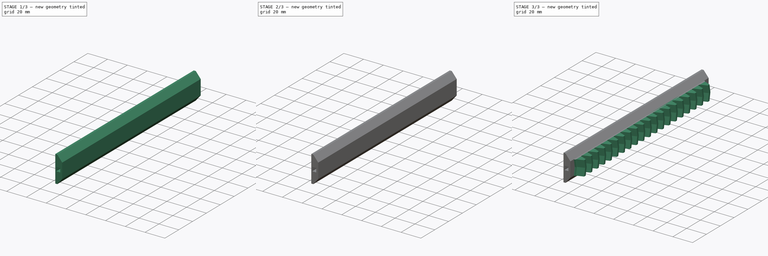
[diagram: build sequence overview — one tinted view per stage of 3, left to right]
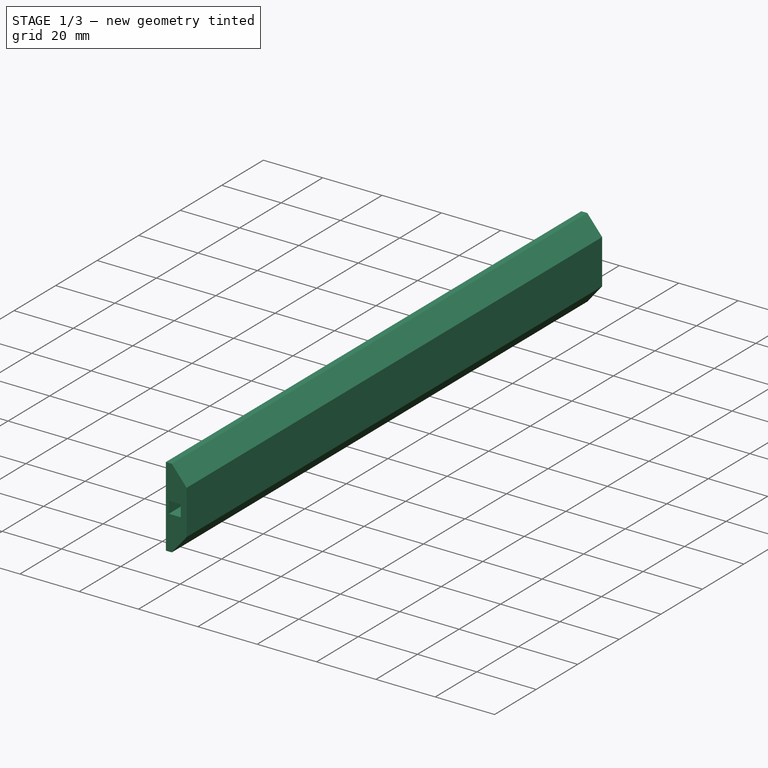
[diagram: stage 1 of 3 — iso view after this stage's code; geometry added in this stage tinted green]
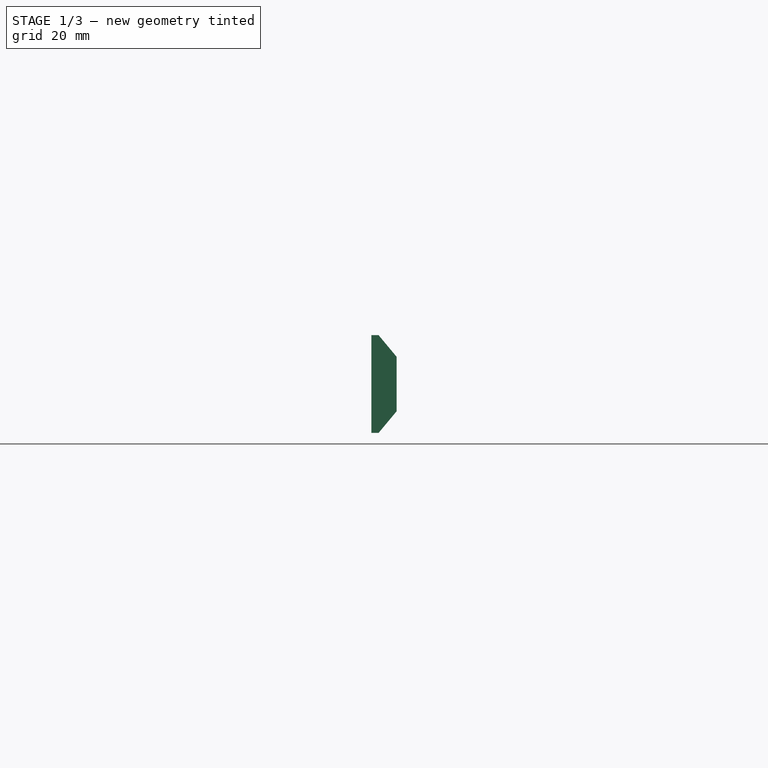
[diagram: stage 1 of 3 — front view after this stage's code; geometry added in this stage tinted green]
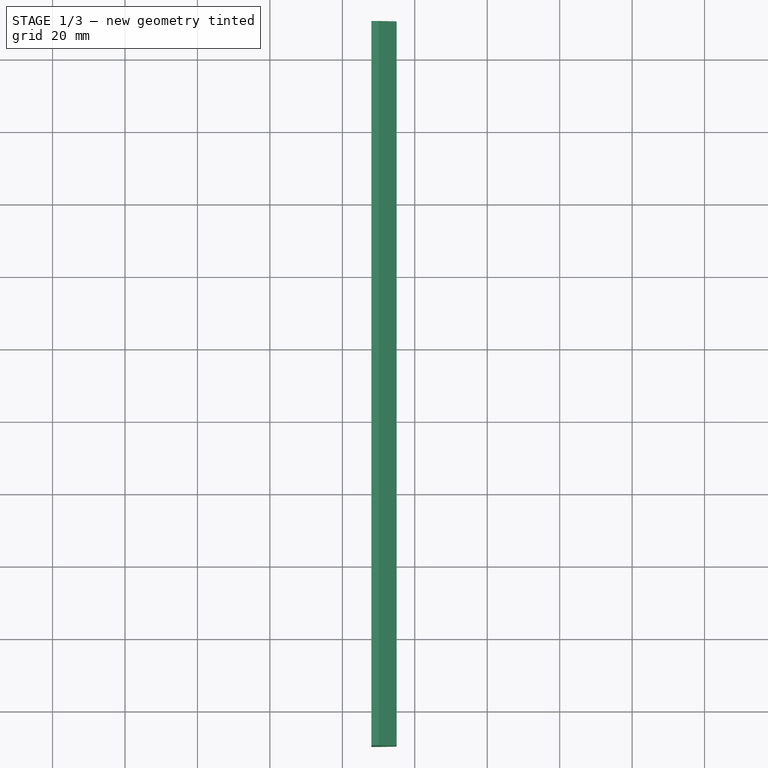
[diagram: stage 1 of 3 — top view after this stage's code; geometry added in this stage tinted green]
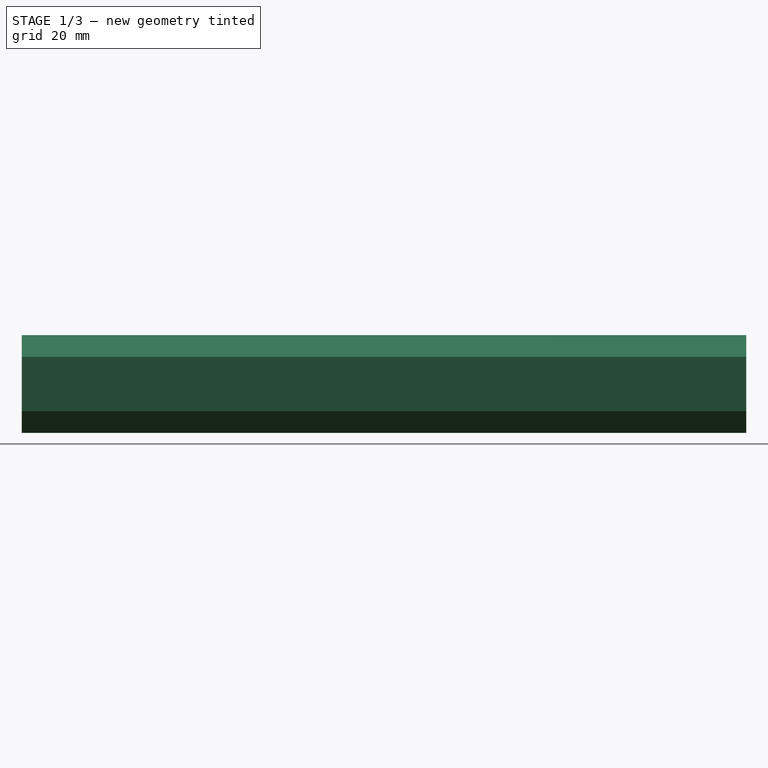
[diagram: stage 1 of 3 — right view after this stage's code; geometry added in this stage tinted green]
FCSTD DOCUMENT  (FreeCAD 1.0R39285 (Git))
Label: rack-01
License: All rights reserved
LicenseURL: http://en.wikipedia.org/wiki/All_rights_reserved
objects: Sketcher::SketchObject×3, PartDesign::LinearPattern×2, Part::FeaturePython×1, PartDesign::Point×1, PartDesign::CoordinateSystem×1, PartDesign::Pad×1, PartDesign::Pocket×1, PartDesign::Hole×1, PartDesign::Body×1, App::Part×1
note: 23 computed .brp shape members not serialized (recipe doc carries the construction recipe); baked Part::Feature solids carry a one-line shape summary decoded from their .brp

FEATURE [PartDesign::Point] DatumPoint
  AttacherType = Attacher::AttachEnginePoint
  MapMode = 37
  Placement = pos=(-6.25,-4.71239,7.5) rot=(0,0,1;0rad)
FEATURE [PartDesign::CoordinateSystem] Local_CS
  AttacherType = Attacher::AttachEngine3D
  MapMode = 45
  Placement = pos=(-6.25,-4.71239,7.5) rot=(-1,0,0;1.5708rad)
FEATURE [Sketcher::SketchObject] Sketch
  ArcFitTolerance = 1e-06
  FullyConstrained = true
  MakeInternals = false
  MapMode = 5
  Placement = pos=(0,-4.71239,0) rot=(1,0,0;1.5708rad)
  sketch-geometry (6):
    g0: LineSegment StartX=-5 StartY=0 StartZ=0 EndX=-10 EndY=-6 EndZ=0
    g1: LineSegment StartX=-10 StartY=-6 StartZ=0 EndX=-12 EndY=-6 EndZ=0
    g2: LineSegment StartX=-12 StartY=-6 StartZ=0 EndX=-12 EndY=21 EndZ=0
    g3: LineSegment StartX=-12 StartY=21 StartZ=0 EndX=-10 EndY=21 EndZ=0
    g4: LineSegment StartX=-10 StartY=21 StartZ=0 EndX=-5 EndY=15 EndZ=0
    g5: LineSegment StartX=-5 StartY=15 StartZ=0 EndX=-5 EndY=0 EndZ=0
  constraints (18):
    c: PointOnObject(g0,g-1)
    c: Coincident(g0,g1)
    c: Coincident(g1,g2)
    c: Vertical(g2)
    c: Coincident(g2,g3)
    c: Horizontal(g3)
    c: Coincident(g3,g4)
    c: Coincident(g4,g5)
    c: Coincident(g5,g0)
    c: Vertical(g5)
    c: Perpendicular(g1,g2)
    c: DistanceX(g0,g-1) = 5
    c: DistanceX(g0,g-1) = 10
    c: DistanceX(g1,g-1) = 12
    c: DistanceY(g0,g-1) = 6
    c: DistanceY(g0,g4) = 15
    c: DistanceY(g4,g3) = 6
    c: DistanceX(g3,g-1) = 10
FEATURE [PartDesign::Pad] Pad
  Direction = (0,-1,2e-16)
  Length = 5
  Length2 = 195
  Placement = pos=(0,-4.71239,0) rot=(1,0,0;1.5708rad)
  Profile = -> Sketch
  ReferenceAxis = -> Sketch [N_Axis]
  Suppressed = false
  Type = 4
FEATURE [Sketcher::SketchObject] Sketch001
  ArcFitTolerance = 1e-06
  AttachmentSupport = -> [Pad]
  ExternalGeometry = -> [Pad]
  FullyConstrained = true
  MakeInternals = false
  MapMode = 45
  Placement = pos=(-8.84591,-9.71239,7.5) rot=(-1,0,0;1.5708rad)
  sketch-geometry (6):
    g0: LineSegment StartX=-2.15409 StartY=-2 StartZ=0 EndX=1.84591 EndY=-2 EndZ=0
    g1: LineSegment StartX=1.84591 StartY=-2 StartZ=0 EndX=1.84591 EndY=2 EndZ=0
    g2: LineSegment StartX=1.84591 StartY=2 StartZ=0 EndX=-2.15409 EndY=2 EndZ=0
    g3: LineSegment StartX=-2.15409 StartY=2 StartZ=0 EndX=-2.15409 EndY=-2 EndZ=0
    g4: GeomPoint [constr] X=-0.154088 Y=8.69e-14 Z=0
    g5: GeomPoint [constr] X=-3.15409 Y=8.69e-14 Z=0
  constraints (14):
    c: Coincident(g0,g1)
    c: Coincident(g1,g2)
    c: Coincident(g2,g3)
    c: Coincident(g3,g0)
    c: Horizontal(g0)
    c: Horizontal(g2)
    c: Vertical(g1)
    c: Vertical(g3)
    c: Symmetric(g2,g0,g4)
    c: Distance(g1,g3) = 4
    c: Distance(g0,g2) = 4
    c: DistanceX(g4,g-5) = -3
    c: Symmetric(g-5,g-7,g5)
    c: DistanceY(g5,g4) = 0
FEATURE [PartDesign::Pocket] Pocket
  BaseFeature = -> Pad
  Direction = (0,-1,-2e-16)
  Length = 6
  Length2 = 5
  Placement = pos=(0,-4.71239,0) rot=(1,0,0;1.5708rad)
  Profile = -> Sketch001
  ReferenceAxis = -> Sketch001 [N_Axis]
  Reversed = true
  Suppressed = false
  Type = 0
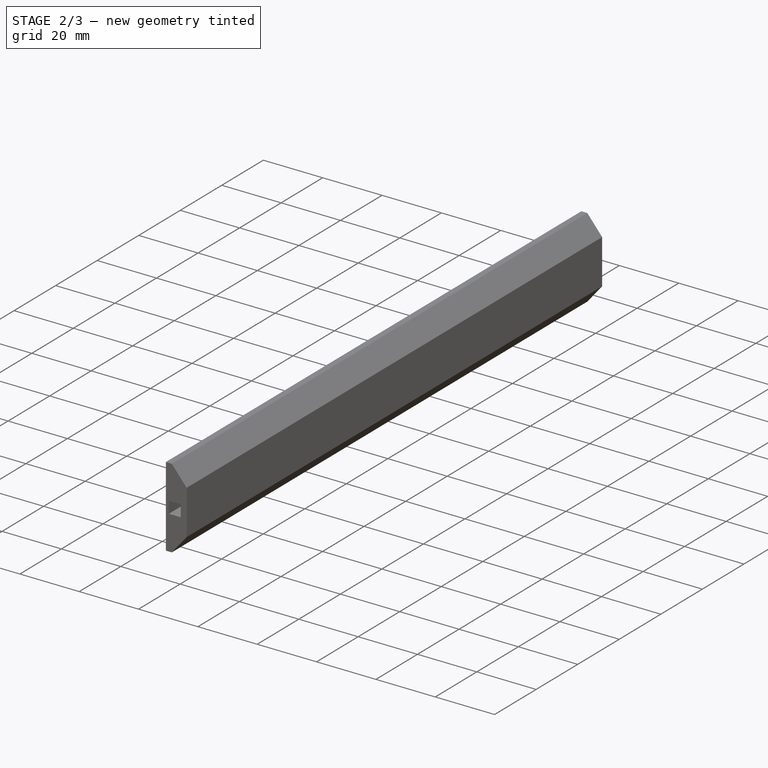
[diagram: stage 2 of 3 — iso view after this stage's code; geometry added in this stage tinted green]
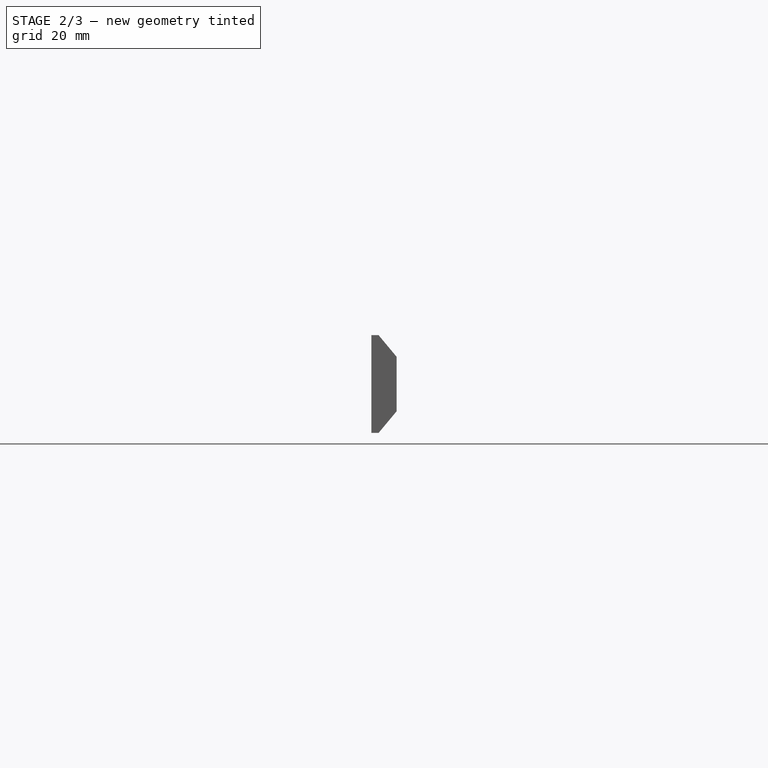
[diagram: stage 2 of 3 — front view after this stage's code; geometry added in this stage tinted green]
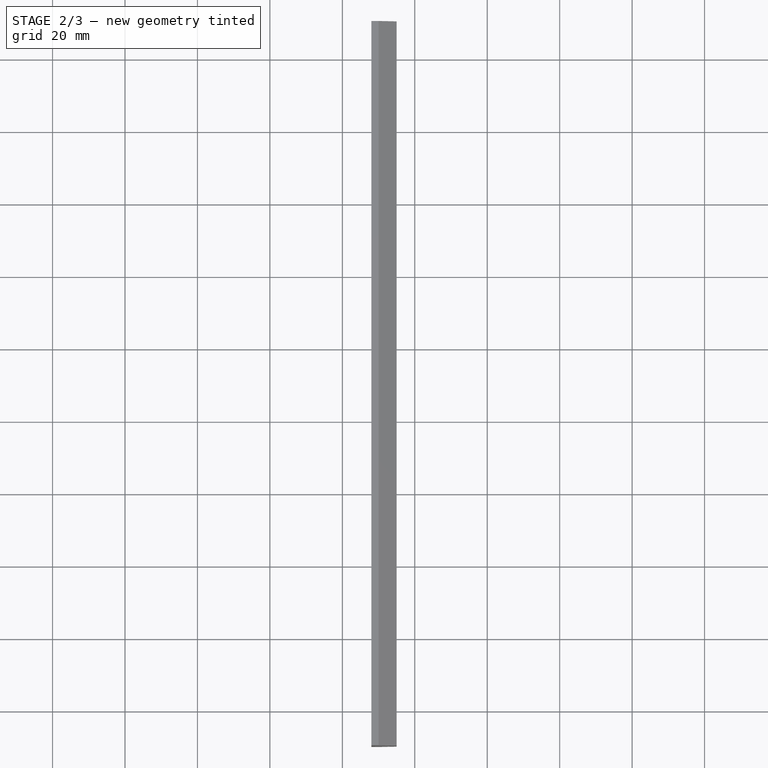
[diagram: stage 2 of 3 — top view after this stage's code; geometry added in this stage tinted green]
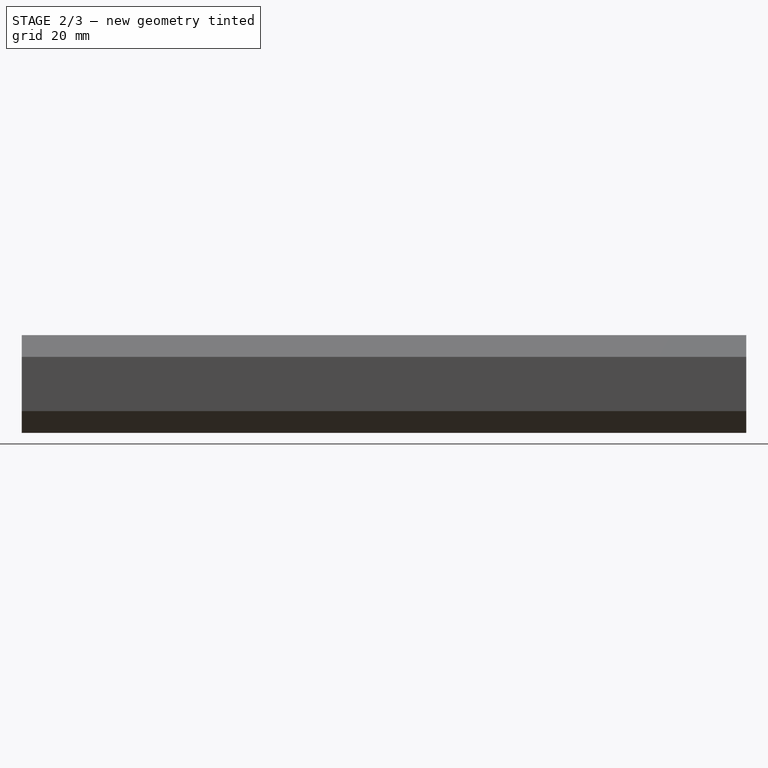
[diagram: stage 2 of 3 — right view after this stage's code; geometry added in this stage tinted green]
FEATURE [Sketcher::SketchObject] Sketch002
  ArcFitTolerance = 1e-06
  AttachmentSupport = -> [Pocket]
  ExternalGeometry = -> [Pocket]
  FullyConstrained = false
  MakeInternals = false
  MapMode = 5
  Placement = pos=(0,190.288,-4.49e-14) rot=(-1,0,0;1.5708rad)
  sketch-geometry (2):
    g0: LineSegment [constr] StartX=-12 StartY=-7.5 StartZ=0 EndX=-3.1073 EndY=-7.5 EndZ=0
    g1: Circle CenterX=-10 CenterY=-7.5 CenterZ=0 NormalX=0 NormalY=0 NormalZ=1 AngleXU=0 Radius=1
  constraints (5):
    c: Symmetric(g-4,g-5,g0)
    c: Diameter(g1) = 2
    c: PointOnObject(g1,g0)
    c: DistanceX(g-3,g1) = 2
    c: Symmetric(g-3,g-3,g0)
FEATURE [PartDesign::Hole] Hole
  BaseFeature = -> Pocket
  CustomThreadClearance = 0
  Depth = 20
  DepthType = 0
  Diameter = 1.6
  DrillForDepth = false
  DrillPoint = 0
  DrillPointAngle = 118
  HoleCutCountersinkAngle = 90
  HoleCutCustomValues = false
  HoleCutDepth = 0
  HoleCutDiameter = 4.3
  HoleCutType = 0
  ModelThread = false
  Placement = pos=(0,-4.71239,0) rot=(1,0,0;1.5708rad)
  Profile = -> Sketch002
  Suppressed = false
  Tapered = false
  TaperedAngle = 90
  ThreadClass = 0
  ThreadDepth = 20
  ThreadDepthType = 0
  ThreadDirection = 0
  ThreadFit = 0
  ThreadSize = 6
  ThreadType = 1
  Threaded = true
  UseCustomThreadClearance = false
FEATURE [PartDesign::LinearPattern] LinearPattern
  BaseFeature = -> Hole
  Direction = -> Z_Axis001
  Length = 8
  Mode = 1
  Occurrences = 2
  Offset = 8
  Originals = -> [Hole]
  Placement = pos=(0,-4.71239,0) rot=(1,0,0;1.5708rad)
  Suppressed = false
  TransformMode = 0
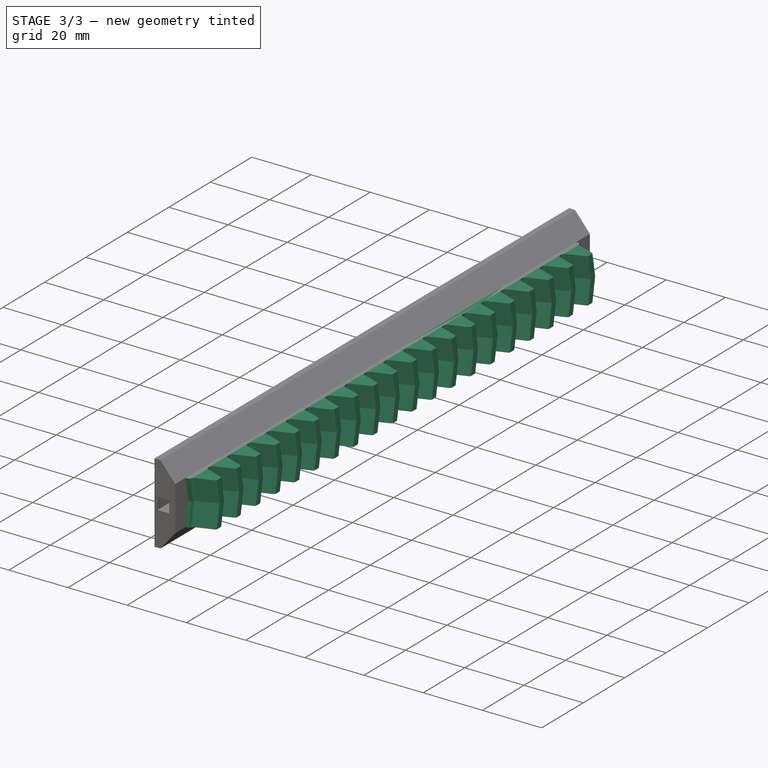
[diagram: stage 3 of 3 — iso view after this stage's code; geometry added in this stage tinted green]
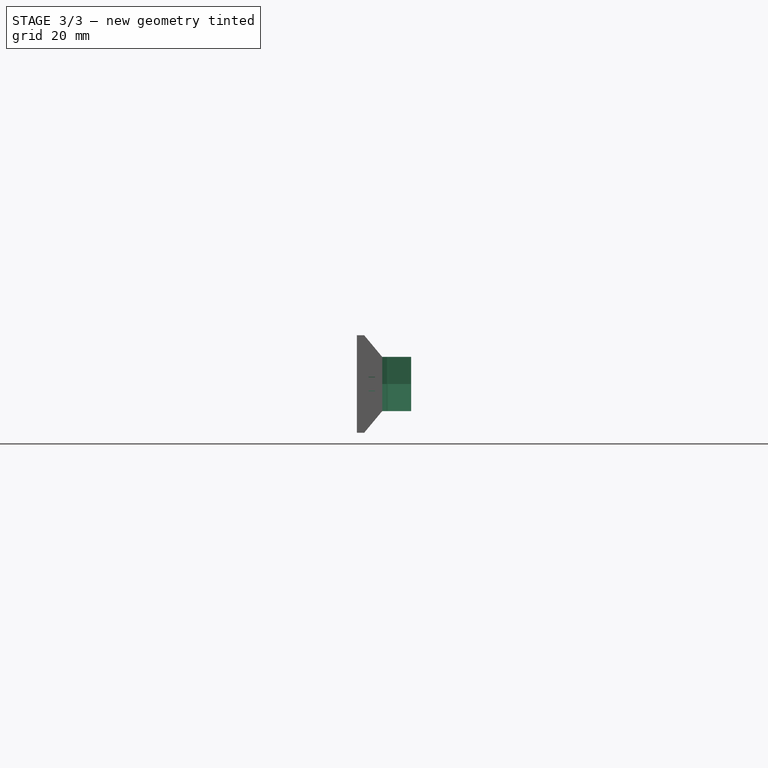
[diagram: stage 3 of 3 — front view after this stage's code; geometry added in this stage tinted green]
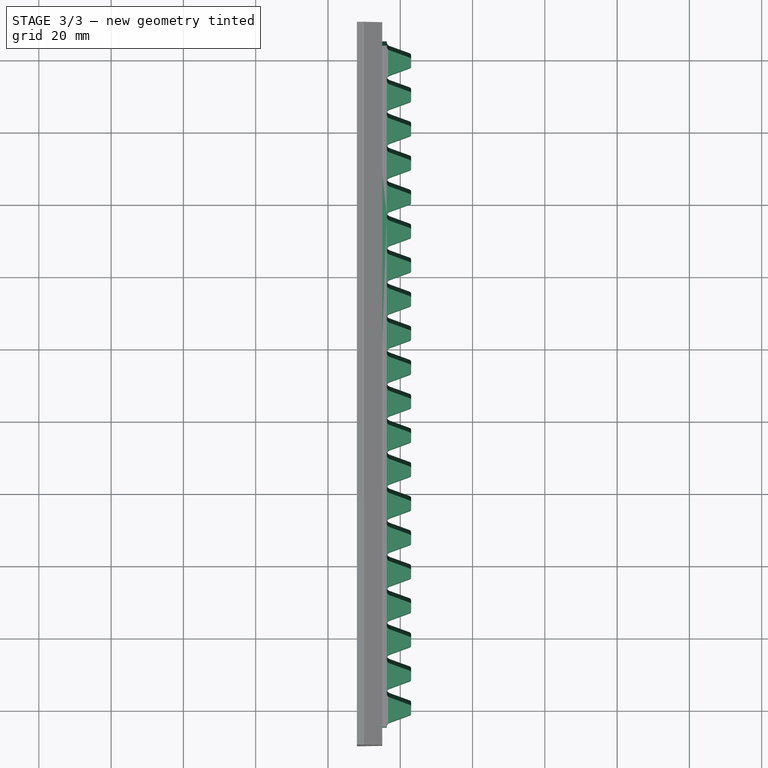
[diagram: stage 3 of 3 — top view after this stage's code; geometry added in this stage tinted green]
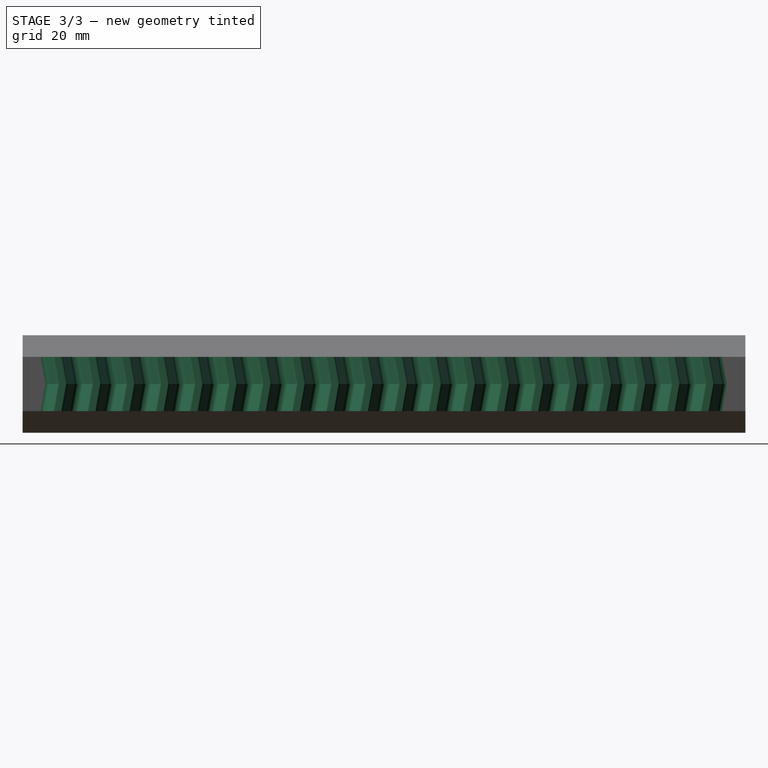
[diagram: stage 3 of 3 — right view after this stage's code; geometry added in this stage tinted green]
FEATURE [Part::FeaturePython] InvoluteRack  # WARN: FeaturePython — macro-defined, semantics opaque (R4)
  AttacherType = Attacher::AttachEngine3D
  add_endings = true
  clearance = 0.25
  double_helix = true
  head = 0
  head_fillet = 0.2
  height = 15
  helix_angle = 10
  module = 3
  num_teeth = 20
  pressure_angle = 20
  properties_from_tool = false
  root_fillet = 0.4
  simplified = false
  thickness = 5
  transverse_pitch = 9.42478
  version = 0.0.4
FEATURE [PartDesign::LinearPattern] LinearPattern001
  BaseFeature = -> LinearPattern
  Direction = -> Z_Axis001
  Length = 8
  Mode = 0
  Occurrences = 2
  Offset = 8
  Originals = -> [Hole]
  Placement = pos=(0,-4.71239,0) rot=(1,0,0;1.5708rad)
  Reversed = true
  Suppressed = false
  TransformMode = 0
FEATURE [PartDesign::Body] Body
  AllowCompound = false
  Group = -> [DatumPoint,Local_CS,Sketch,Pad,Sketch001,Pocket,Sketch002,Hole,LinearPattern,LinearPattern001]
  Origin = -> Origin001
  Tip = -> LinearPattern001
FEATURE [App::Part] Part
  Group = -> [Body,InvoluteRack]
  Origin = -> Origin
  Placement = pos=(0,0,0) rot=(0,1,0;-1.5708rad)
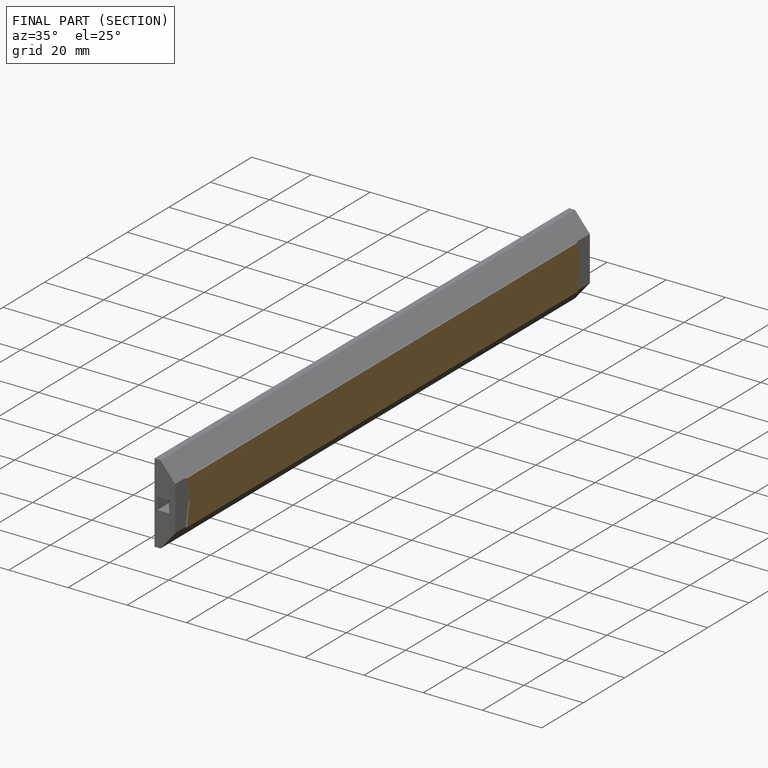
[diagram: finished part — half-section view (interior)]
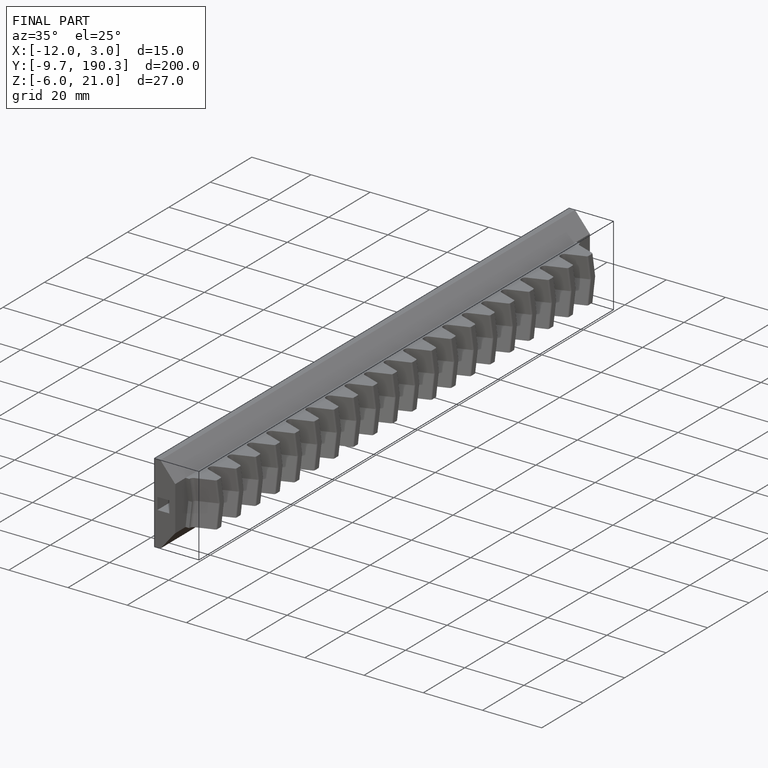
[diagram: finished part — iso view with bounding-box wireframe]
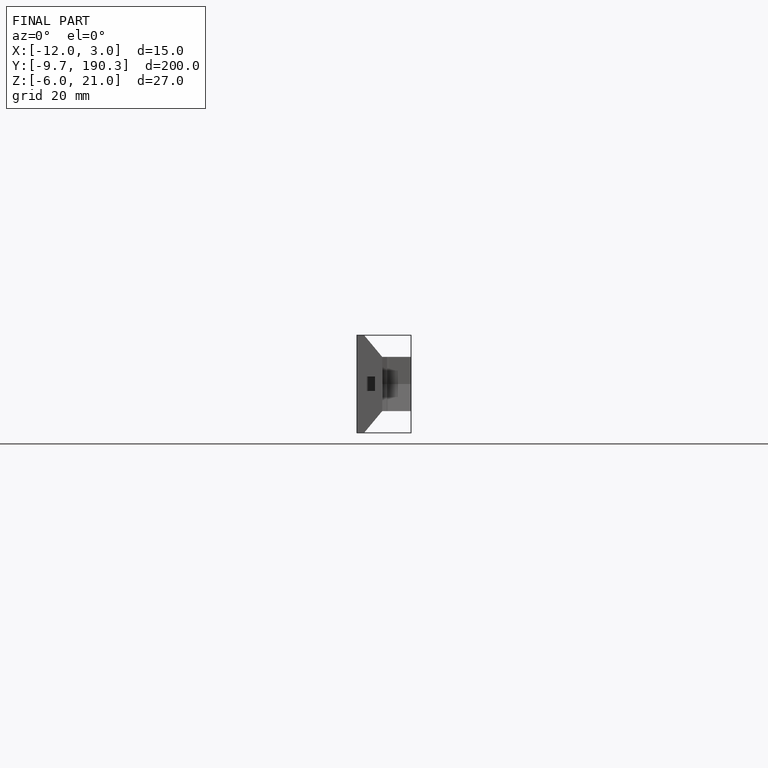
[diagram: finished part — front view with bounding-box wireframe]
